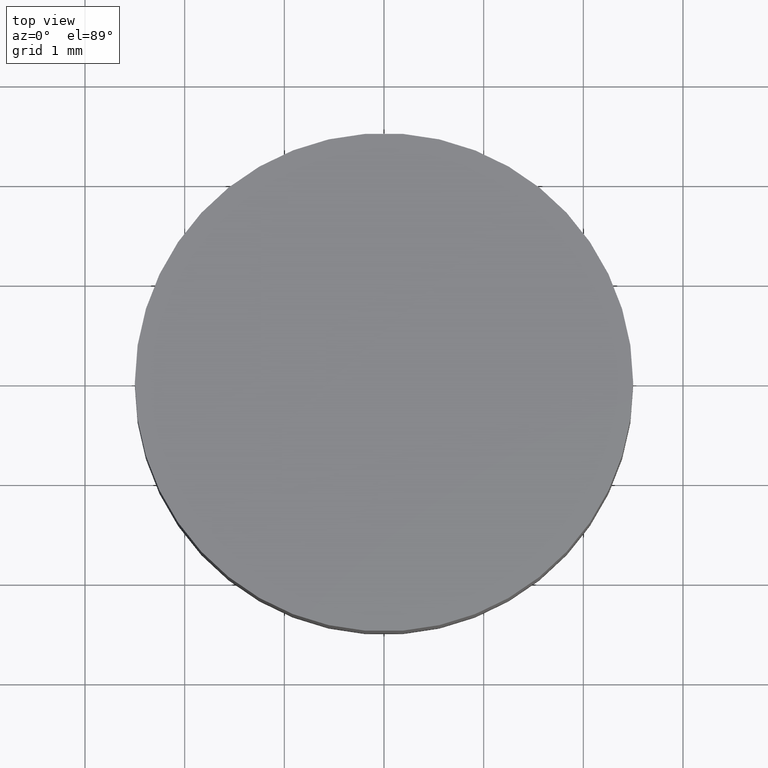
[diagram: clean part render]
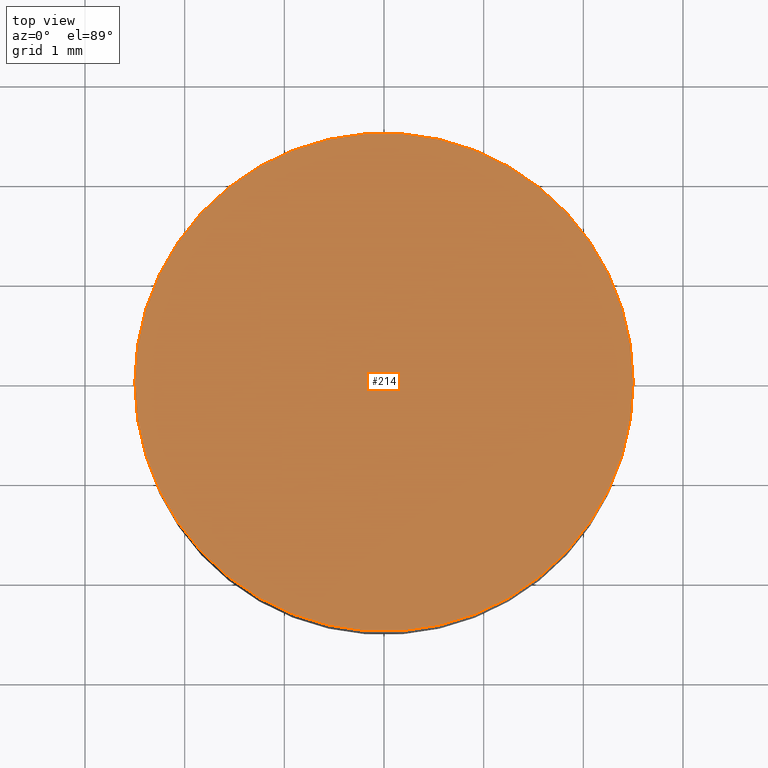
[diagram: same view with one face highlighted and labeled with its STEP entity id]
A machine part, top view. The second image highlights one B-rep face of the part: STEP entity #214.
In plain terms, the highlighted planar face has unit normal (0, 0, 1).
Its self-contained STEP definition (entity closure, byte-faithful):
#5 = PLANE ( 'NONE',  #248 ) ;
#27 = DIRECTION ( 'NONE',  ( 0.0000000000000000000, 0.0000000000000000000, 1.000000000000000000 ) ) ;
#28 = CARTESIAN_POINT ( 'NONE',  ( 0.0000000000000000000, 0.0000000000000000000, 2.000000000000000000 ) ) ;
#29 = AXIS2_PLACEMENT_3D ( 'NONE', #80, #235, #83 ) ;
#32 = CIRCLE ( 'NONE', #29, 2.500000000000002200 ) ;
#36 = VERTEX_POINT ( 'NONE', #116 ) ;
#49 = DIRECTION ( 'NONE',  ( 1.000000000000000000, 0.0000000000000000000, 0.0000000000000000000 ) ) ;
#57 = EDGE_CURVE ( 'NONE', #36, #215, #137, .T. ) ;
#58 = CARTESIAN_POINT ( 'NONE',  ( -2.500000000000002200, 0.0000000000000000000, 2.000000000000000000 ) ) ;
#80 = CARTESIAN_POINT ( 'NONE',  ( 0.0000000000000000000, 0.0000000000000000000, 2.000000000000000000 ) ) ;
#83 = DIRECTION ( 'NONE',  ( 1.000000000000000000, 0.0000000000000000000, 0.0000000000000000000 ) ) ;
#102 = CARTESIAN_POINT ( 'NONE',  ( 0.0000000000000000000, 0.0000000000000000000, 2.000000000000000000 ) ) ;
#116 = CARTESIAN_POINT ( 'NONE',  ( 2.500000000000002200, 3.061616997868386100E-016, 2.000000000000000000 ) ) ;
#134 = AXIS2_PLACEMENT_3D ( 'NONE', #28, #27, #49 ) ;
#137 = CIRCLE ( 'NONE', #134, 2.500000000000002200 ) ;
#147 = FACE_OUTER_BOUND ( 'NONE', #192, .T. ) ;
#176 = EDGE_CURVE ( 'NONE', #215, #36, #32, .T. ) ;
#182 = DIRECTION ( 'NONE',  ( 0.0000000000000000000, 0.0000000000000000000, 1.000000000000000000 ) ) ;
#185 = DIRECTION ( 'NONE',  ( 1.000000000000000000, 0.0000000000000000000, -0.0000000000000000000 ) ) ;
#192 = EDGE_LOOP ( 'NONE', ( #239, #220 ) ) ;
#214 = ADVANCED_FACE ( 'NONE', ( #147 ), #5, .T. ) ;
#215 = VERTEX_POINT ( 'NONE', #58 ) ;
#220 = ORIENTED_EDGE ( 'NONE', *, *, #57, .T. ) ;
#235 = DIRECTION ( 'NONE',  ( 0.0000000000000000000, 0.0000000000000000000, 1.000000000000000000 ) ) ;
#239 = ORIENTED_EDGE ( 'NONE', *, *, #176, .T. ) ;
#248 = AXIS2_PLACEMENT_3D ( 'NONE', #102, #182, #185 ) ;